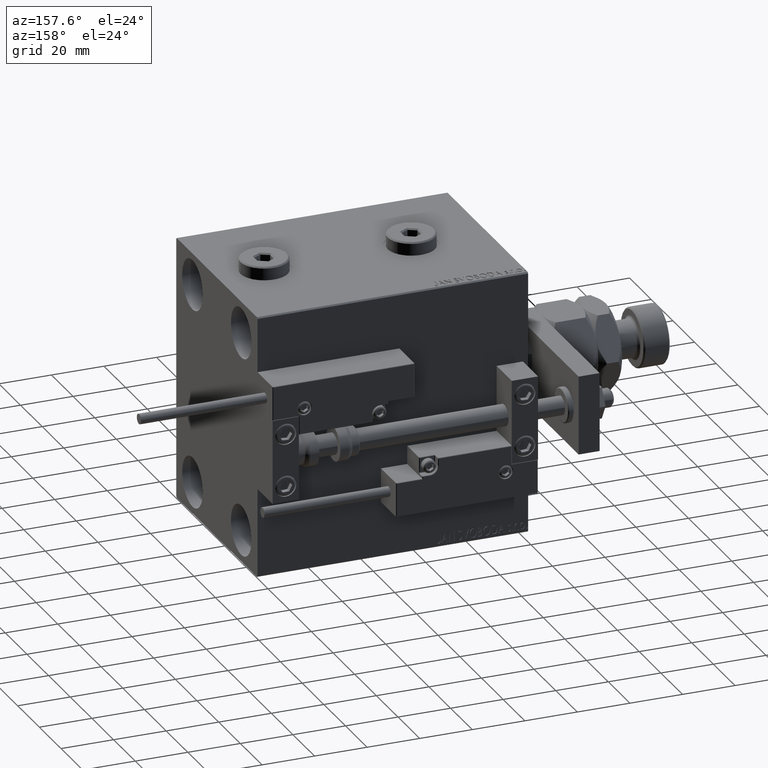
[diagram: clean part render]
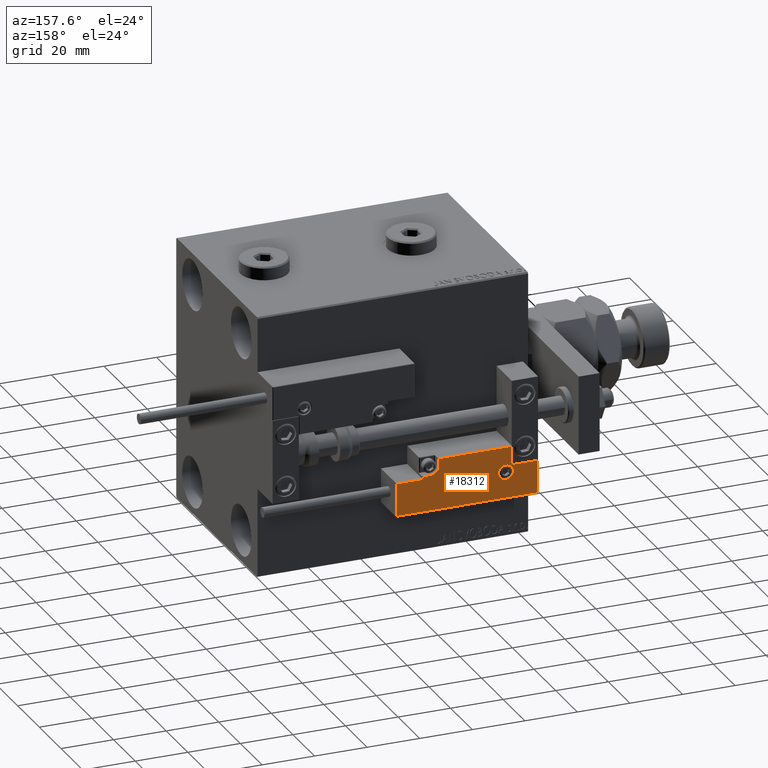
[diagram: same view with one face highlighted and labeled with its STEP entity id]
A machine part, auxiliary view. The second image highlights one B-rep face of the part: STEP entity #18312.
In plain terms, the highlighted planar face has unit normal (-0, 1, -0).
Its self-contained STEP definition (entity closure, byte-faithful):
#1555 = VERTEX_POINT ( 'NONE', #20301 ) ;
#1560 = EDGE_CURVE ( 'NONE', #44422, #36972, #21518, .T. ) ;
#2404 = LINE ( 'NONE', #18596, #7245 ) ;
#2581 = LINE ( 'NONE', #19038, #29599 ) ;
#2773 = FACE_OUTER_BOUND ( 'NONE', #29240, .T. ) ;
#3345 = LINE ( 'NONE', #27627, #39531 ) ;
#3702 = LINE ( 'NONE', #24994, #9023 ) ;
#5523 = CIRCLE ( 'NONE', #39087, 3.299999999999997158 ) ;
#5590 = ORIENTED_EDGE ( 'NONE', *, *, #50034, .T. ) ;
#6432 = DIRECTION ( 'NONE',  ( 0.000000000000000000, -0.000000000000000000, -1.000000000000000000 ) ) ;
#6455 = VECTOR ( 'NONE', #7426, 1000.000000000000000 ) ;
#6852 = CARTESIAN_POINT ( 'NONE',  ( -11.99999999999994849, 9.800000000000004263, 14.00000000000000000 ) ) ;
#7245 = VECTOR ( 'NONE', #52300, 1000.000000000000000 ) ;
#7411 = VERTEX_POINT ( 'NONE', #9954 ) ;
#7426 = DIRECTION ( 'NONE',  ( -0.000000000000000000, 1.000000000000000000, -0.000000000000000000 ) ) ;
#8334 = VECTOR ( 'NONE', #46246, 1000.000000000000000 ) ;
#9023 = VECTOR ( 'NONE', #27978, 1000.000000000000000 ) ;
#9684 = DIRECTION ( 'NONE',  ( 1.000000000000000000, 0.000000000000000000, 0.000000000000000000 ) ) ;
#9714 = ORIENTED_EDGE ( 'NONE', *, *, #51315, .T. ) ;
#9954 = CARTESIAN_POINT ( 'NONE',  ( 26.70000000000006324, 19.70000000000001705, 14.00000000000000000 ) ) ;
#10556 = EDGE_CURVE ( 'NONE', #36972, #44422, #38224, .T. ) ;
#10837 = AXIS2_PLACEMENT_3D ( 'NONE', #39984, #27850, #43240 ) ;
#11449 = DIRECTION ( 'NONE',  ( 1.000000000000000000, -0.000000000000000000, 0.000000000000000000 ) ) ;
#11668 = CARTESIAN_POINT ( 'NONE',  ( -17.59999999999994813, 9.800000000000004263, 14.00000000000000000 ) ) ;
#11850 = EDGE_CURVE ( 'NONE', #23110, #42832, #2404, .T. ) ;
#11871 = VERTEX_POINT ( 'NONE', #40159 ) ;
#12213 = CARTESIAN_POINT ( 'NONE',  ( -14.79999999999994920, 9.800000000000004263, 14.00000000000000000 ) ) ;
#13063 = EDGE_CURVE ( 'NONE', #1555, #7411, #3702, .T. ) ;
#13818 = CARTESIAN_POINT ( 'NONE',  ( 10.69999999999999929, 3.000000000000003109, 14.00000000000000000 ) ) ;
#14119 = CARTESIAN_POINT ( 'NONE',  ( -16.69999999999999218, 0.3000000000000032085, 14.00000000000000000 ) ) ;
#14225 = EDGE_CURVE ( 'NONE', #32753, #23110, #2581, .T. ) ;
#14369 = EDGE_CURVE ( 'NONE', #29384, #32753, #5523, .T. ) ;
#15091 = EDGE_CURVE ( 'NONE', #7411, #11871, #16968, .T. ) ;
#16739 = LINE ( 'NONE', #49907, #31803 ) ;
#16968 = LINE ( 'NONE', #27194, #28778 ) ;
#17059 = DIRECTION ( 'NONE',  ( -8.006416042969869188E-16, -1.000000000000000000, 0.000000000000000000 ) ) ;
#17512 = ORIENTED_EDGE ( 'NONE', *, *, #35167, .T. ) ;
#18147 = VERTEX_POINT ( 'NONE', #14119 ) ;
#18312 = ADVANCED_FACE ( 'NONE', ( #51590, #2773 ), #26789, .T. ) ;
#18596 = CARTESIAN_POINT ( 'NONE',  ( 16.69999999999999929, 7.000000000000009770, 14.00000000000000000 ) ) ;
#19038 = CARTESIAN_POINT ( 'NONE',  ( 17.00000000000000000, 6.300000000000003375, 14.00000000000000000 ) ) ;
#19764 = DIRECTION ( 'NONE',  ( 0.000000000000000000, -0.000000000000000000, -1.000000000000000000 ) ) ;
#20301 = CARTESIAN_POINT ( 'NONE',  ( 26.70000000000006324, 7.300000000000007816, 14.00000000000000000 ) ) ;
#20534 = ORIENTED_EDGE ( 'NONE', *, *, #25901, .T. ) ;
#21518 = CIRCLE ( 'NONE', #51658, 2.800000000000000266 ) ;
#22312 = CARTESIAN_POINT ( 'NONE',  ( 13.99999999999999822, 6.300000000000001599, 14.00000000000000000 ) ) ;
#22426 = EDGE_CURVE ( 'NONE', #37853, #29384, #28463, .T. ) ;
#23110 = VERTEX_POINT ( 'NONE', #43088 ) ;
#23891 = ORIENTED_EDGE ( 'NONE', *, *, #35097, .T. ) ;
#24333 = ORIENTED_EDGE ( 'NONE', *, *, #1560, .T. ) ;
#24520 = CARTESIAN_POINT ( 'NONE',  ( -16.69999999999999218, 7.300000000000003375, 14.00000000000000000 ) ) ;
#24994 = CARTESIAN_POINT ( 'NONE',  ( 26.70000000000006324, 20.00000000000001776, 14.00000000000000000 ) ) ;
#25221 = CARTESIAN_POINT ( 'NONE',  ( -26.69999999999994600, 7.300000000000005151, 14.00000000000000000 ) ) ;
#25486 = CARTESIAN_POINT ( 'NONE',  ( -16.99999999999999289, 7.300000000000003375, 14.00000000000000000 ) ) ;
#25901 = EDGE_CURVE ( 'NONE', #25932, #51531, #30052, .T. ) ;
#25932 = VERTEX_POINT ( 'NONE', #25221 ) ;
#26789 = PLANE ( 'NONE',  #10837 ) ;
#27194 = CARTESIAN_POINT ( 'NONE',  ( -26.99999999999993605, 19.70000000000002061, 14.00000000000000000 ) ) ;
#27627 = CARTESIAN_POINT ( 'NONE',  ( 11.00000000000000000, 0.3000000000000032085, 14.00000000000000000 ) ) ;
#27850 = DIRECTION ( 'NONE',  ( -0.000000000000000000, 0.000000000000000000, 1.000000000000000000 ) ) ;
#27978 = DIRECTION ( 'NONE',  ( 0.000000000000000000, 1.000000000000000000, -0.000000000000000000 ) ) ;
#28463 = LINE ( 'NONE', #40862, #6455 ) ;
#28778 = VECTOR ( 'NONE', #34997, 1000.000000000000000 ) ;
#28902 = ORIENTED_EDGE ( 'NONE', *, *, #14225, .T. ) ;
#29240 = EDGE_LOOP ( 'NONE', ( #17512, #23891, #38003, #46073, #28902, #29613, #9714, #37527, #32899, #5590, #20534 ) ) ;
#29384 = VERTEX_POINT ( 'NONE', #13818 ) ;
#29599 = VECTOR ( 'NONE', #35479, 1000.000000000000000 ) ;
#29613 = ORIENTED_EDGE ( 'NONE', *, *, #11850, .T. ) ;
#30052 = LINE ( 'NONE', #25486, #8334 ) ;
#30267 = CARTESIAN_POINT ( 'NONE',  ( -26.69999999999994600, 7.000000000000005329, 14.00000000000000000 ) ) ;
#31803 = VECTOR ( 'NONE', #42358, 1000.000000000000000 ) ;
#32753 = VERTEX_POINT ( 'NONE', #22312 ) ;
#32899 = ORIENTED_EDGE ( 'NONE', *, *, #15091, .T. ) ;
#34301 = LINE ( 'NONE', #30267, #48145 ) ;
#34997 = DIRECTION ( 'NONE',  ( -1.000000000000000000, 6.424901762877063495E-17, -0.000000000000000000 ) ) ;
#35097 = EDGE_CURVE ( 'NONE', #18147, #37853, #3345, .T. ) ;
#35167 = EDGE_CURVE ( 'NONE', #51531, #18147, #39765, .T. ) ;
#35479 = DIRECTION ( 'NONE',  ( 1.000000000000000000, 5.782411586589357639E-16, -0.000000000000000000 ) ) ;
#36737 = DIRECTION ( 'NONE',  ( 1.000000000000000000, 0.000000000000000000, 0.000000000000000000 ) ) ;
#36972 = VERTEX_POINT ( 'NONE', #11668 ) ;
#37527 = ORIENTED_EDGE ( 'NONE', *, *, #13063, .T. ) ;
#37690 = CARTESIAN_POINT ( 'NONE',  ( 16.69999999999999929, 7.300000000000009592, 14.00000000000000000 ) ) ;
#37853 = VERTEX_POINT ( 'NONE', #39093 ) ;
#38003 = ORIENTED_EDGE ( 'NONE', *, *, #22426, .T. ) ;
#38224 = CIRCLE ( 'NONE', #40793, 2.800000000000000266 ) ;
#39087 = AXIS2_PLACEMENT_3D ( 'NONE', #45172, #44908, #44633 ) ;
#39093 = CARTESIAN_POINT ( 'NONE',  ( 10.69999999999999929, 0.3000000000000032085, 14.00000000000000000 ) ) ;
#39531 = VECTOR ( 'NONE', #11449, 1000.000000000000000 ) ;
#39765 = LINE ( 'NONE', #43808, #50769 ) ;
#39984 = CARTESIAN_POINT ( 'NONE',  ( 0.000000000000000000, 0.000000000000000000, 14.00000000000000000 ) ) ;
#40159 = CARTESIAN_POINT ( 'NONE',  ( -26.69999999999993534, 19.70000000000002061, 14.00000000000000000 ) ) ;
#40793 = AXIS2_PLACEMENT_3D ( 'NONE', #46907, #6432, #9684 ) ;
#40862 = CARTESIAN_POINT ( 'NONE',  ( 10.69999999999999929, 3.000000000000003109, 14.00000000000000000 ) ) ;
#42358 = DIRECTION ( 'NONE',  ( 1.000000000000000000, -1.734723475976796001E-16, 0.000000000000000000 ) ) ;
#42832 = VERTEX_POINT ( 'NONE', #37690 ) ;
#43088 = CARTESIAN_POINT ( 'NONE',  ( 16.69999999999999929, 6.300000000000003375, 14.00000000000000000 ) ) ;
#43240 = DIRECTION ( 'NONE',  ( 1.000000000000000000, 0.000000000000000000, 0.000000000000000000 ) ) ;
#43566 = EDGE_LOOP ( 'NONE', ( #24333, #52334 ) ) ;
#43808 = CARTESIAN_POINT ( 'NONE',  ( -16.69999999999999218, 3.252606517456513302E-15, 14.00000000000000000 ) ) ;
#44422 = VERTEX_POINT ( 'NONE', #6852 ) ;
#44633 = DIRECTION ( 'NONE',  ( 1.000000000000000000, 0.000000000000000000, 0.000000000000000000 ) ) ;
#44908 = DIRECTION ( 'NONE',  ( 0.000000000000000000, -0.000000000000000000, -1.000000000000000000 ) ) ;
#45172 = CARTESIAN_POINT ( 'NONE',  ( 13.99999999999999822, 3.000000000000002665, 14.00000000000000000 ) ) ;
#46073 = ORIENTED_EDGE ( 'NONE', *, *, #14369, .T. ) ;
#46246 = DIRECTION ( 'NONE',  ( 1.000000000000000000, -1.734723475976815230E-16, 0.000000000000000000 ) ) ;
#46907 = CARTESIAN_POINT ( 'NONE',  ( -14.79999999999994920, 9.800000000000004263, 14.00000000000000000 ) ) ;
#47603 = DIRECTION ( 'NONE',  ( 0.000000000000000000, -1.000000000000000000, 0.000000000000000000 ) ) ;
#48145 = VECTOR ( 'NONE', #17059, 1000.000000000000000 ) ;
#49907 = CARTESIAN_POINT ( 'NONE',  ( 27.00000000000006395, 7.300000000000007816, 14.00000000000000000 ) ) ;
#50034 = EDGE_CURVE ( 'NONE', #11871, #25932, #34301, .T. ) ;
#50769 = VECTOR ( 'NONE', #47603, 1000.000000000000000 ) ;
#51315 = EDGE_CURVE ( 'NONE', #42832, #1555, #16739, .T. ) ;
#51531 = VERTEX_POINT ( 'NONE', #24520 ) ;
#51590 = FACE_BOUND ( 'NONE', #43566, .T. ) ;
#51658 = AXIS2_PLACEMENT_3D ( 'NONE', #12213, #19764, #36737 ) ;
#52300 = DIRECTION ( 'NONE',  ( 9.912705577010318647E-16, 1.000000000000000000, 0.000000000000000000 ) ) ;
#52334 = ORIENTED_EDGE ( 'NONE', *, *, #10556, .T. ) ;